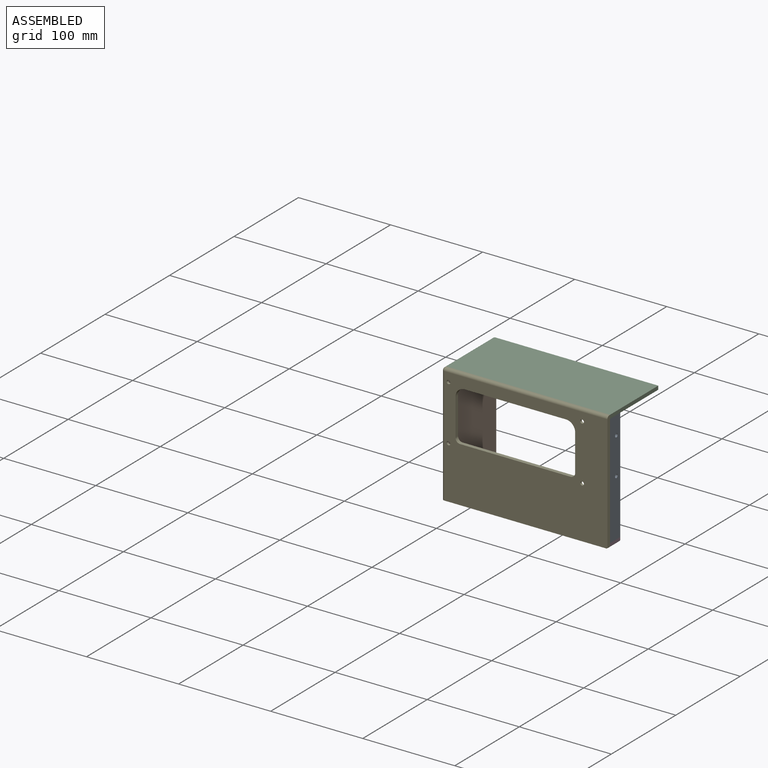
[diagram: assembled view]
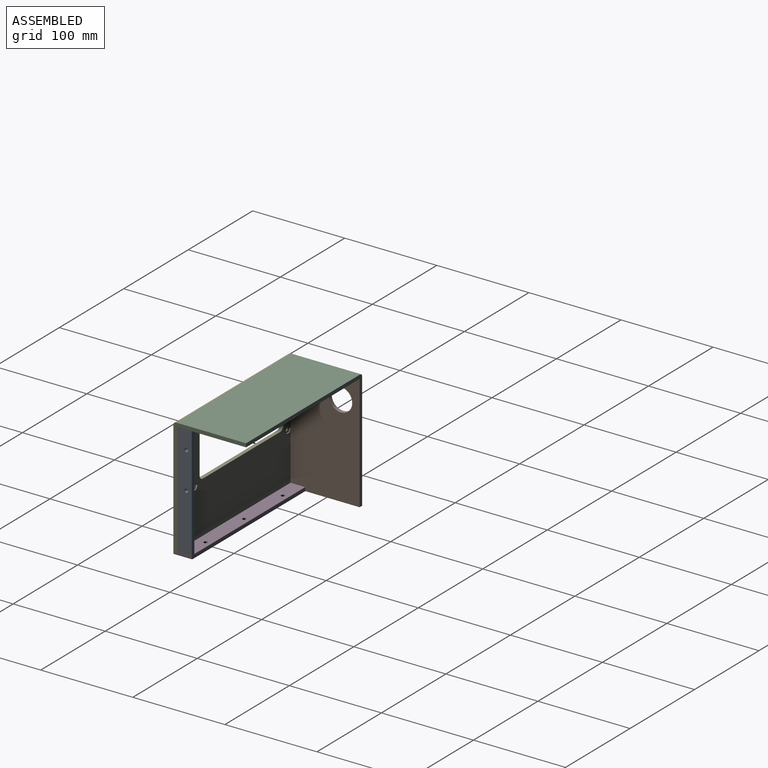
[diagram: assembled view, second angle]
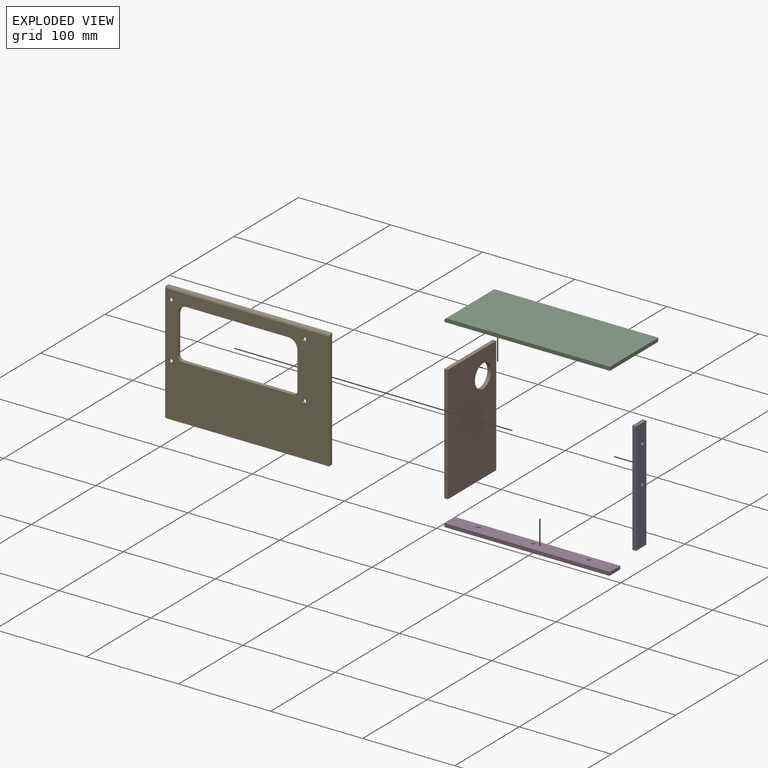
[diagram: exploded view]
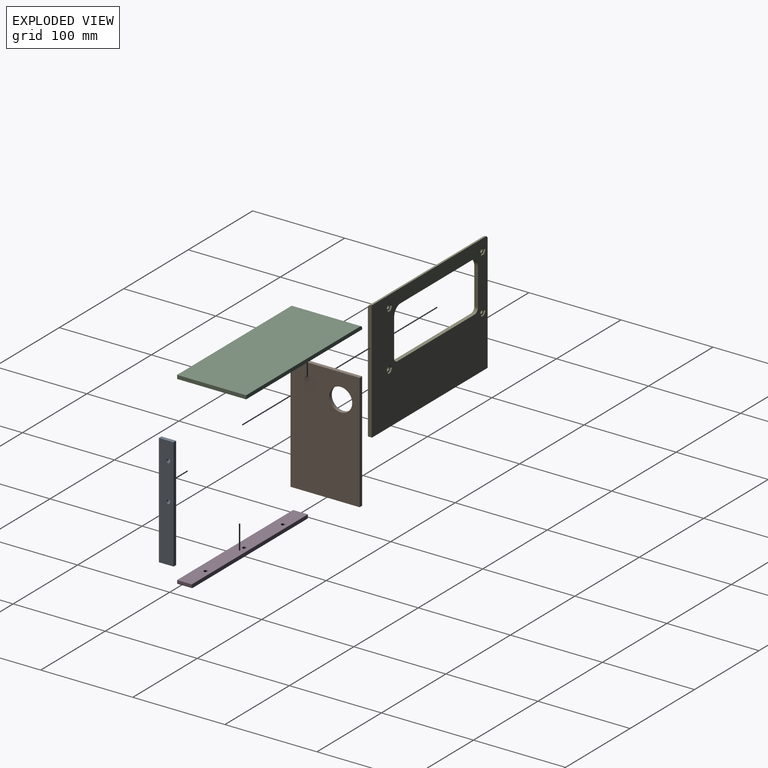
[diagram: exploded view, second angle]
ASSEMBLY  parts=5 mates=3
PART A: 8 faces, bbox 4x16x122 mm
  f0: plane 122x4mm, normal (0,1,0), area 488mm2, adj f1,f5,f6,f7
  f1: plane 16x4mm, normal (0,0,1), area 64mm2, adj f0,f2,f6,f7
  f2: plane 122x4mm, normal (0,-1,0), area 488mm2, adj f1,f5,f6,f7
  f3: cylinder r=2mm len=4mm, axis (-1,0,0), area 50.3mm2, adj f6,f7
  f4: cylinder r=2mm len=4mm, axis (-1,0,0), area 50.3mm2, adj f6,f7
  f5: plane 16x4mm, normal (0,0,-1), area 64mm2, adj f0,f2,f6,f7
  f6: plane 122x16mm, normal (1,0,0), area 1926.9mm2, adj f0,f1,f2,f3,f4,f5
  f7: plane 122x16mm, normal (-1,0,0), area 1926.9mm2, adj f0,f1,f2,f3,f4,f5
PART B: 7 faces, bbox 4x75x127 mm
  f0: plane 127x4mm, normal (0,1,0), area 508mm2, adj f1,f3,f4,f5
  f1: plane 127x75mm, normal (-1,0,0), area 9034.1mm2, adj f0,f2,f4,f5,f6
  f2: plane 127x4mm, normal (0,-1,0), area 508mm2, adj f1,f3,f4,f5
  f3: plane 127x75mm, normal (1,0,0), area 9034.1mm2, adj f0,f2,f4,f5,f6
  f4: plane 75x4mm, normal (0,0,1), area 300mm2, adj f0,f1,f2,f3
  f5: plane 75x4mm, normal (0,0,-1), area 300mm2, adj f0,f1,f2,f3
  f6: cylinder r=12.5mm len=25mm, axis (1,0,0), area 314.2mm2, adj f1,f3
PART C: 7 faces, bbox 180x75x4 mm
  f0: plane 180x4mm, normal (0,-1,0), area 718.1mm2, adj f1,f3,f4,f5,f6
  f1: plane 180x75mm, normal (0,0,-1), area 13500mm2, adj f0,f2,f4,f5
  f2: plane 180x4mm, normal (0,1,0), area 718.1mm2, adj f1,f3,f4,f5,f6
  f3: plane 177x75mm, normal (0,0,1), area 13275mm2, adj f0,f2,f4,f6
  f4: plane 75x4mm, normal (1,0,0), area 300mm2, adj f0,f1,f2,f3
  f5: plane 75x1mm, normal (-1,0,0), area 75mm2, adj f0,f1,f2,f6
  f6: cylinder r=3mm len=75mm, axis (0,-1,0), area 353.4mm2, adj f0,f2,f3,f5
PART D: 10 faces, bbox 180x16x4 mm
  f0: plane 180x4mm, normal (0,1,0), area 719.8mm2, adj f1,f3,f4,f5,f9
  f1: plane 180x16mm, normal (0,0,1), area 2842.3mm2, adj f0,f2,f4,f5,f6,f7,f8
  f2: plane 180x4mm, normal (0,-1,0), area 719.8mm2, adj f1,f3,f4,f5,f9
  f3: plane 179x16mm, normal (0,0,-1), area 2826.3mm2, adj f0,f2,f5,f6,f7,f8,f9
  f4: plane 16x3mm, normal (1,0,0), area 48mm2, adj f0,f1,f2,f9
  f5: plane 16x4mm, normal (-1,0,0), area 64mm2, adj f0,f1,f2,f3
  f6: cylinder r=2mm len=4mm, axis (0,0,1), area 50.3mm2, adj f1,f3
  f7: cylinder r=2mm len=4mm, axis (0,0,1), area 50.3mm2, adj f1,f3
  f8: cylinder r=2mm len=4mm, axis (0,0,1), area 50.3mm2, adj f1,f3
  f9: cylinder r=1mm len=16mm, axis (0,-1,0), area 25.1mm2, adj f0,f2,f3,f4
PART E: 51 faces, bbox 180x4x130 mm
  f0: cylinder r=2mm len=4mm, axis (0,1,0), area 31.4mm2, adj f17,f29
  f1: cylinder r=2mm len=4mm, axis (0,1,0), area 31.4mm2, adj f17,f36
  f2: cylinder r=2mm len=4mm, axis (0,1,0), area 31.4mm2, adj f17,f43
  f3: cylinder r=2mm len=4mm, axis (0,1,0), area 31.4mm2, adj f17,f50
  f4: plane 180x130mm, normal (0,1,0), area 16121.9mm2, adj f5,f6,f7,f8,f9,f10,f11,f12
  f5: plane 127x1mm, normal (-1,0,0), area 127mm2, adj f4,f6,f19,f21
  f6: plane 179x4mm, normal (0,0,-1), area 714.1mm2, adj f4,f5,f17,f18,f21
  f7: plane 129x4mm, normal (1,0,0), area 514.1mm2, adj f4,f16,f17,f18,f20
  f8: plane 120x4mm, normal (0,0,1), area 480mm2, adj f4,f9,f15,f17
  f9: cylinder r=5mm len=5mm, axis (0,1,0), area 31.4mm2, adj f4,f8,f10,f17
  f10: plane 40x4mm, normal (1,0,0), area 160mm2, adj f4,f9,f11,f17
  f11: cylinder r=10mm len=10mm, axis (0,1,0), area 62.8mm2, adj f4,f10,f12,f17
  f12: plane 110x4mm, normal (0,0,-1), area 440mm2, adj f4,f11,f13,f17
  f13: cylinder r=10mm len=10mm, axis (0,1,0), area 62.8mm2, adj f4,f12,f14,f17
  f14: plane 40x4mm, normal (-1,0,0), area 160mm2, adj f4,f13,f15,f17
  f15: cylinder r=5mm len=5mm, axis (0,1,0), area 31.4mm2, adj f4,f8,f14,f17
  f16: plane 177x1mm, normal (0,0,1), area 177mm2, adj f4,f7,f19,f20
  f17: plane 177x127mm, normal (0,-1,0), area 15332.2mm2, adj f0,f1,f2,f3,f6,f7,f8,f9
  f18: cylinder r=1mm len=4mm, axis (0,-1,0), area 6.3mm2, adj f4,f6,f7,f17
  f19: cylinder r=3mm len=3mm, axis (0,-1,0), area 4.7mm2, adj f4,f5,f16,f22
  f20: cylinder r=3mm len=177mm, axis (1,0,0), area 834.1mm2, adj f7,f16,f17,f22
  f21: cylinder r=3mm len=127mm, axis (0,0,1), area 598.5mm2, adj f5,f6,f17,f22
  f22: sphere r=3mm, area 14.1mm2, adj f19,f20,f21
  f23: plane 4.16x1.5mm, normal (0.02,0,1), area 6.2mm2, adj f4,f24,f28,f29
  f24: plane 3.64x2mm, normal (0.88,0,0.48), area 6.2mm2, adj f4,f23,f25,f29
  f25: plane 3.55x2.16mm, normal (0.86,0,-0.52), area 6.2mm2, adj f4,f24,f26,f29
  f26: plane 4.16x1.5mm, normal (-0.02,0,-1), area 6.2mm2, adj f4,f25,f27,f29
  f27: plane 3.64x2mm, normal (-0.88,0,-0.48), area 6.2mm2, adj f4,f26,f28,f29
  f28: plane 3.55x2.16mm, normal (-0.86,0,0.52), area 6.2mm2, adj f4,f23,f27,f29
  f29: plane 8.31x7.29mm, normal (0,1,0), area 32.3mm2, adj f0,f23,f24,f25,f26,f27,f28
  f30: plane 4.16x1.5mm, normal (0.01,0,1), area 6.2mm2, adj f4,f31,f35,f36
  f31: plane 3.61x2.06mm, normal (0.87,0,0.5), area 6.2mm2, adj f4,f30,f32,f36
  f32: plane 3.59x2.1mm, normal (0.86,0,-0.5), area 6.2mm2, adj f4,f31,f33,f36
  f33: plane 4.16x1.5mm, normal (-0.01,0,-1), area 6.2mm2, adj f4,f32,f34,f36
  f34: plane 3.61x2.06mm, normal (-0.87,0,-0.5), area 6.2mm2, adj f4,f33,f35,f36
  f35: plane 3.59x2.1mm, normal (-0.86,0,0.5), area 6.2mm2, adj f4,f30,f34,f36
  f36: plane 8.31x7.22mm, normal (0,1,0), area 32.3mm2, adj f1,f30,f31,f32,f33,f34,f35
  f37: plane 4.16x1.5mm, normal (0.02,0,1), area 6.2mm2, adj f4,f38,f42,f43
  f38: plane 3.65x2mm, normal (0.88,0,0.48), area 6.2mm2, adj f4,f37,f39,f43
  f39: plane 3.55x2.16mm, normal (0.85,0,-0.52), area 6.2mm2, adj f4,f38,f40,f43
  f40: plane 4.16x1.5mm, normal (-0.02,0,-1), area 6.2mm2, adj f4,f39,f41,f43
  f41: plane 3.65x2mm, normal (-0.88,0,-0.48), area 6.2mm2, adj f4,f40,f42,f43
  f42: plane 3.55x2.16mm, normal (-0.85,0,0.52), area 6.2mm2, adj f4,f37,f41,f43
  f43: plane 8.31x7.29mm, normal (0,1,0), area 32.4mm2, adj f2,f37,f38,f39,f40,f41,f42
  f44: plane 4.16x1.5mm, normal (0,0,1), area 6.2mm2, adj f4,f45,f49,f50
  f45: plane 3.61x2.07mm, normal (0.87,0,0.5), area 6.2mm2, adj f4,f44,f46,f50
  f46: plane 3.59x2.09mm, normal (0.86,0,-0.5), area 6.2mm2, adj f4,f45,f47,f50
  f47: plane 4.16x1.5mm, normal (0,0,-1), area 6.2mm2, adj f4,f46,f48,f50
  f48: plane 3.61x2.07mm, normal (-0.87,0,-0.5), area 6.2mm2, adj f4,f47,f49,f50
  f49: plane 3.59x2.09mm, normal (-0.86,0,0.5), area 6.2mm2, adj f4,f44,f48,f50
  f50: plane 8.31x7.21mm, normal (0,1,0), area 32.3mm2, adj f3,f44,f45,f46,f47,f48,f49
PLACE A t=(84.47,0,0)mm
PLACE B t=(-0.13,0,16.58)mm
PLACE C t=(-1.53,0,0)mm
PLACE D t=(-1.53,0,0)mm
PLACE E at identity
MATE planar B.f1 <-> C.f5  axis (-1,0,0) through (-91.53,0,80.08)mm
MATE planar A.f6 <-> D.f4  axis (1,0,0) through (88.47,0,-42.92)mm
MATE planar D.f5 <-> E.f5  axis (-1,0,0) through (-91.53,0,-46.92)mm
